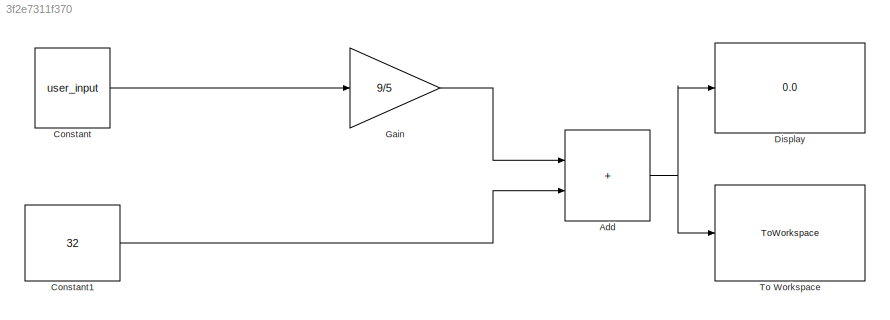
MODEL slx_3f2e7311f370
KIND model
CONFIG AbsTol = auto
CONFIG EnableMultiTasking = off
CONFIG FixedStep = auto
CONFIG MaxStep = auto
CONFIG MinStep = auto
CONFIG RelTol = 1e-3
CONFIG SampleTimeConstraint = Unconstrained
CONFIG SolverName = VariableStepAuto
CONFIG StartTime = 0.0
CONFIG StopTime = 10
BLOCK [Sum] Add
  IconShape = rectangular
BLOCK [Constant] Constant
  Value = user_input
BLOCK [Constant] Constant1
  Value = 32
BLOCK [Display] Display
  Decimation = 1
BLOCK [Gain] Gain
  Gain = 9/5
BLOCK [ToWorkspace] To Workspace
  FixptAsFi = on
  MaxDataPoints = inf
  SampleTime = -1
  SaveFormat = Timeseries
  VariableName = convertresult
NET Add:1 -> Display:1, To Workspace:1
LINE Constant1:1 -> Add:2
LINE Constant:1 -> Gain:1
LINE Gain:1 -> Add:1
note: NET lines group one-source signal fan-out (src -> all destinations, sorted); 1:1 wires keep LINE
